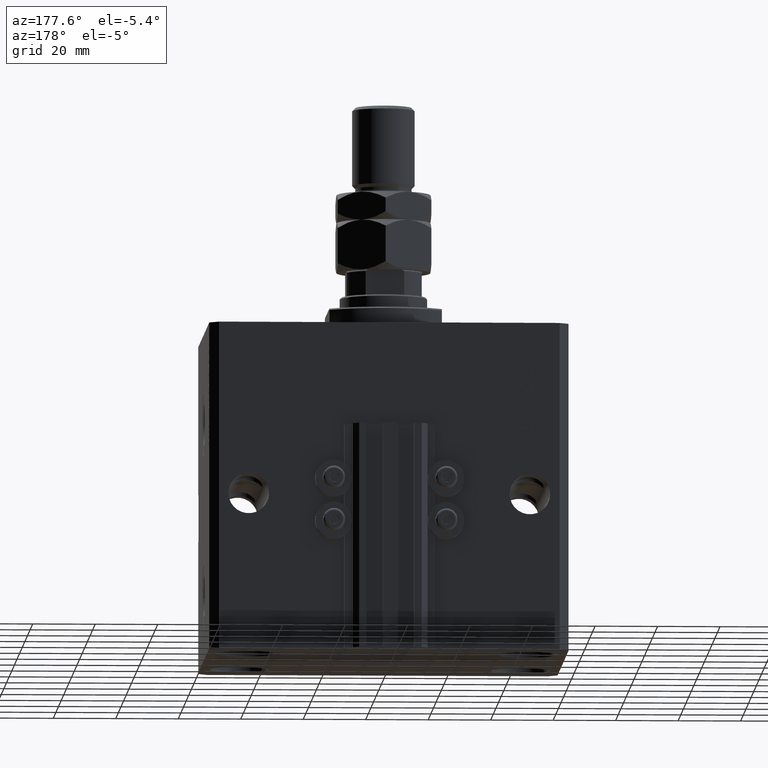
[diagram: clean part render]
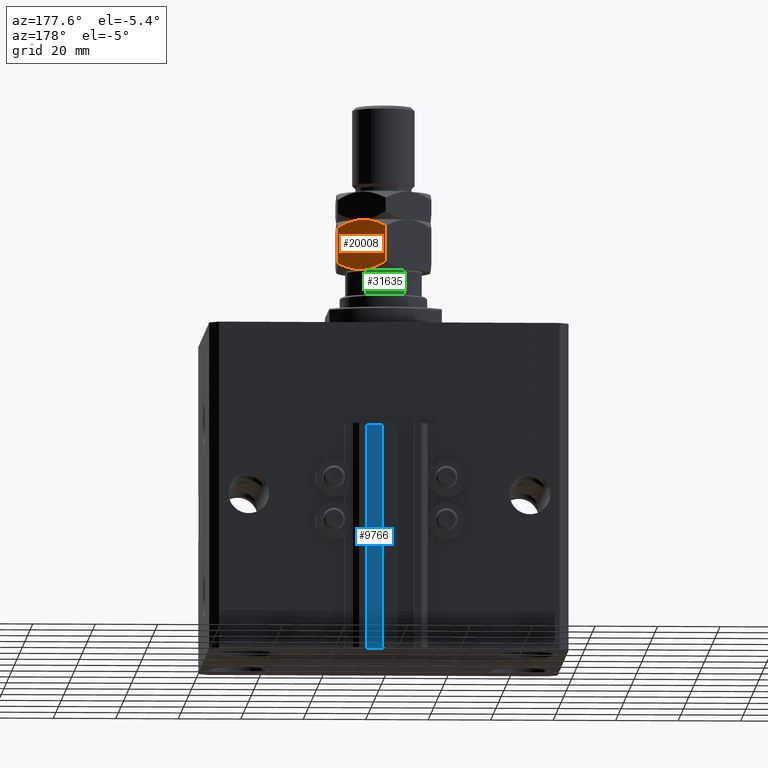
[diagram: same view with three faces highlighted in distinct colors, each labeled with its STEP entity id]
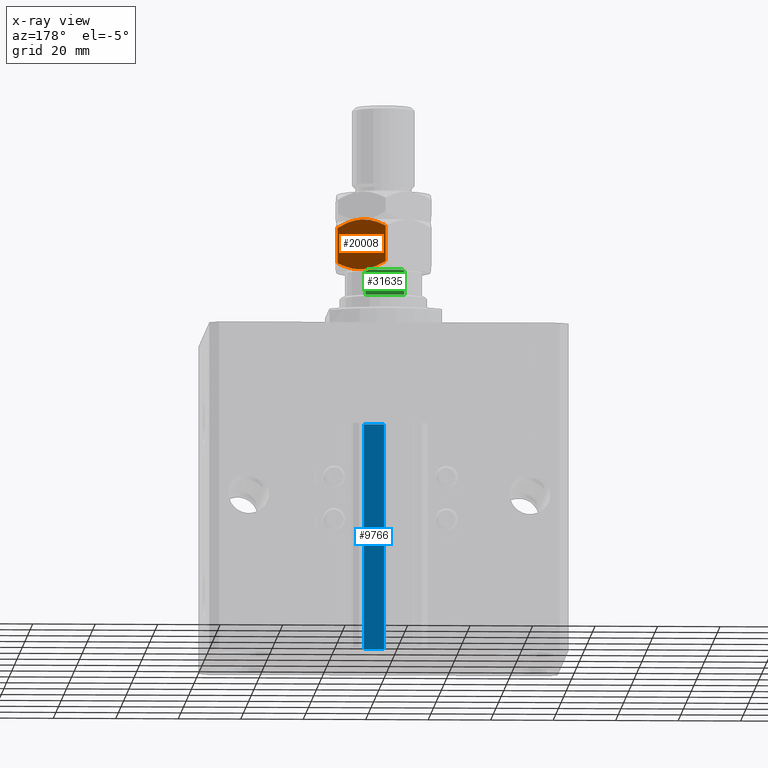
[diagram: x-ray of the same camera — body ghosted, the three highlighted faces saturated]
A machine part, auxiliary view with three faces highlighted in distinct colors.
The next image is the same camera in x-ray (body ghosted, the three faces saturated) — at least one of them is partly hidden behind the body in this view.
Their STEP definitions:

[orange] entity #20008 — the highlighted planar face has unit normal (-0.5, -0.866, 0).
#244 = CARTESIAN_POINT ( 'NONE',  ( 8.823580389329306328, 12.22621156269319798, 15.94046462602529957 ) ) ;
#936 = EDGE_CURVE ( 'NONE', #22589, #29348, #2656, .T. ) ;
#1606 = CARTESIAN_POINT ( 'NONE',  ( 8.804550678576910983, 12.23719837131869426, -5.031375706690542042E-16 ) ) ;
#2391 = B_SPLINE_CURVE_WITH_KNOTS ( 'NONE', 3,
 ( #32195, #1606, #40640, #16764, #48864, #13425 ),
 .UNSPECIFIED., .F., .F.,
 ( 4, 2, 4 ),
 ( 0.008977392552884443794, 0.01343452311421656532, 0.01789165367554868685 ),
 .UNSPECIFIED. ) ;
#2656 = B_SPLINE_CURVE_WITH_KNOTS ( 'NONE', 3,
 ( #34915, #15158, #16160, #27460, #30841, #244, #31587, #43379 ),
 .UNSPECIFIED., .F., .F.,
 ( 4, 2, 2, 4 ),
 ( 2.544309033641602453E-07, 0.004488823491893906975, 0.006733108022389177119, 0.008977392552884448998 ),
 .UNSPECIFIED. ) ;
#3581 = CARTESIAN_POINT ( 'NONE',  ( 6.195449321423087241, 13.74356374221446764, 16.00000000000000355 ) ) ;
#3684 = VECTOR ( 'NONE', #48784, 1000.000000000000000 ) ;
#3877 = EDGE_CURVE ( 'NONE', #49978, #32290, #25911, .T. ) ;
#6966 = CARTESIAN_POINT ( 'NONE',  ( 7.500000000000000000, 12.99038105676657651, 16.00000000000000000 ) ) ;
#7958 = CARTESIAN_POINT ( 'NONE',  ( 6.176419610670692784, 13.75455055083996214, 0.05953537397470201609 ) ) ;
#9722 = AXIS2_PLACEMENT_3D ( 'NONE', #22341, #21834, #45979 ) ;
#12186 = CARTESIAN_POINT ( 'NONE',  ( 15.00000000000000000, 8.660254037844389075, 2.320508075688765715 ) ) ;
#12379 = ORIENTED_EDGE ( 'NONE', *, *, #19373, .F. ) ;
#12476 = VECTOR ( 'NONE', #19054, 1000.000000000000000 ) ;
#13425 = CARTESIAN_POINT ( 'NONE',  ( 15.00000000000000000, 8.660254037844389075, 2.320508075688765715 ) ) ;
#14964 = LINE ( 'NONE', #43175, #12476 ) ;
#15158 = CARTESIAN_POINT ( 'NONE',  ( 13.82389157469336283, 9.339280553791368789, 14.35851844025821400 ) ) ;
#15696 = B_SPLINE_CURVE_WITH_KNOTS ( 'NONE', 3,
 ( #34429, #50091, #42875, #30848, #42620, #7958, #46987, #46486 ),
 .UNSPECIFIED., .F., .F.,
 ( 4, 2, 2, 4 ),
 ( 2.544309033652185071E-07, 0.004488823491893902638, 0.006733108022389172782, 0.008977392552884443794 ),
 .UNSPECIFIED. ) ;
#15909 = EDGE_CURVE ( 'NONE', #32290, #33424, #15696, .T. ) ;
#16160 = CARTESIAN_POINT ( 'NONE',  ( 12.62116548881249756, 10.03367478323606221, 14.93551393225599710 ) ) ;
#16764 = CARTESIAN_POINT ( 'NONE',  ( 12.61607045183964715, 10.03661640420386902, 1.060479031370879843 ) ) ;
#19054 = DIRECTION ( 'NONE',  ( -0.000000000000000000, -0.000000000000000000, -1.000000000000000000 ) ) ;
#19373 = EDGE_CURVE ( 'NONE', #29348, #49978, #48471, .T. ) ;
#20008 = ADVANCED_FACE ( 'NONE', ( #30588 ), #37510, .F. ) ;
#21403 = ORIENTED_EDGE ( 'NONE', *, *, #33877, .T. ) ;
#21532 = EDGE_LOOP ( 'NONE', ( #29528, #46850, #12379, #49737, #21403, #42798 ) ) ;
#21834 = DIRECTION ( 'NONE',  ( -0.4999999999999997780, -0.8660254037844388186, 0.000000000000000000 ) ) ;
#21965 = EDGE_CURVE ( 'NONE', #33424, #37366, #2391, .T. ) ;
#22341 = CARTESIAN_POINT ( 'NONE',  ( 15.00000000000000000, 8.660254037844389075, 16.00000000000000000 ) ) ;
#22589 = VERTEX_POINT ( 'NONE', #42850 ) ;
#25911 = LINE ( 'NONE', #37727, #3684 ) ;
#27460 = CARTESIAN_POINT ( 'NONE',  ( 10.75222765045651663, 11.11270654730956586, 15.55242859148697576 ) ) ;
#29348 = VERTEX_POINT ( 'NONE', #6966 ) ;
#29511 = CARTESIAN_POINT ( 'NONE',  ( 3.803331551779305683E-16, 17.32050807568877104, 13.67949192431124317 ) ) ;
#29528 = ORIENTED_EDGE ( 'NONE', *, *, #15909, .F. ) ;
#30588 = FACE_OUTER_BOUND ( 'NONE', #21532, .T. ) ;
#30841 = CARTESIAN_POINT ( 'NONE',  ( 10.11832554202262457, 11.47869010025374514, 15.71619733805371411 ) ) ;
#30848 = CARTESIAN_POINT ( 'NONE',  ( 4.247772349543482484, 14.86805556622358893, 0.4475714085130255149 ) ) ;
#31069 = CARTESIAN_POINT ( 'NONE',  ( 2.383929548160350631, 15.94414570932928576, 14.93952096862913059 ) ) ;
#31587 = CARTESIAN_POINT ( 'NONE',  ( 8.156876182308252510, 12.61113341608665728, 16.00000000000000355 ) ) ;
#32195 = CARTESIAN_POINT ( 'NONE',  ( 7.499999999999997335, 12.99038105676658184, 0.000000000000000000 ) ) ;
#32290 = VERTEX_POINT ( 'NONE', #41280 ) ;
#33424 = VERTEX_POINT ( 'NONE', #37383 ) ;
#33877 = EDGE_CURVE ( 'NONE', #22589, #37366, #14964, .T. ) ;
#34429 = CARTESIAN_POINT ( 'NONE',  ( 7.621669386706803087E-17, 17.32050807568877104, 2.320508075688761718 ) ) ;
#34915 = CARTESIAN_POINT ( 'NONE',  ( 15.00000000000000000, 8.660254037844389075, 13.67949192431123784 ) ) ;
#35410 = CARTESIAN_POINT ( 'NONE',  ( 1.174746544192161846, 16.64226784216984356, 14.35773215783022572 ) ) ;
#37366 = VERTEX_POINT ( 'NONE', #12186 ) ;
#37383 = CARTESIAN_POINT ( 'NONE',  ( 7.499999999999997335, 12.99038105676658184, 0.000000000000000000 ) ) ;
#37510 = PLANE ( 'NONE',  #9722 ) ;
#37727 = CARTESIAN_POINT ( 'NONE',  ( 0.000000000000000000, 17.32050807568877104, 16.00000000000000000 ) ) ;
#38768 = CARTESIAN_POINT ( 'NONE',  ( 4.913081180497409939, 14.48393933357810504, 15.76967007806078946 ) ) ;
#40640 = CARTESIAN_POINT ( 'NONE',  ( 10.08691881950258740, 11.49682277995505331, 0.2303299219392160591 ) ) ;
#41280 = CARTESIAN_POINT ( 'NONE',  ( 7.621669386706803087E-17, 17.32050807568877104, 2.320508075688761718 ) ) ;
#42620 = CARTESIAN_POINT ( 'NONE',  ( 4.881674457977373649, 14.50207201327941320, 0.2838026619462936107 ) ) ;
#42798 = ORIENTED_EDGE ( 'NONE', *, *, #21965, .F. ) ;
#42850 = CARTESIAN_POINT ( 'NONE',  ( 15.00000000000000000, 8.660254037844389075, 13.67949192431123784 ) ) ;
#42875 = CARTESIAN_POINT ( 'NONE',  ( 2.378834511187503331, 15.94708733029709080, 1.064486067744004671 ) ) ;
#43175 = CARTESIAN_POINT ( 'NONE',  ( 15.00000000000000000, 8.660254037844389075, 16.00000000000000000 ) ) ;
#43379 = CARTESIAN_POINT ( 'NONE',  ( 7.500000000000000000, 12.99038105676657651, 16.00000000000000000 ) ) ;
#45979 = DIRECTION ( 'NONE',  ( 0.8660254037844387076, -0.4999999999999997224, 0.000000000000000000 ) ) ;
#46486 = CARTESIAN_POINT ( 'NONE',  ( 7.499999999999997335, 12.99038105676658184, 0.000000000000000000 ) ) ;
#46850 = ORIENTED_EDGE ( 'NONE', *, *, #3877, .F. ) ;
#46987 = CARTESIAN_POINT ( 'NONE',  ( 6.843123817691747490, 13.36962869744650639, -3.557538378468061917E-16 ) ) ;
#48471 = B_SPLINE_CURVE_WITH_KNOTS ( 'NONE', 3,
 ( #50571, #3581, #38768, #31069, #35410, #50821 ),
 .UNSPECIFIED., .F., .F.,
 ( 4, 2, 4 ),
 ( 0.008977392552884448998, 0.01343452311421656706, 0.01789165367554868338 ),
 .UNSPECIFIED. ) ;
#48784 = DIRECTION ( 'NONE',  ( -0.000000000000000000, -0.000000000000000000, -1.000000000000000000 ) ) ;
#48864 = CARTESIAN_POINT ( 'NONE',  ( 13.82525345580783949, 9.338494271363313004, 1.642267842169781833 ) ) ;
#49737 = ORIENTED_EDGE ( 'NONE', *, *, #936, .F. ) ;
#49978 = VERTEX_POINT ( 'NONE', #29511 ) ;
#50091 = CARTESIAN_POINT ( 'NONE',  ( 1.176108425306640504, 16.64148155974179843, 1.641481559741787111 ) ) ;
#50571 = CARTESIAN_POINT ( 'NONE',  ( 7.500000000000000000, 12.99038105676657651, 16.00000000000000000 ) ) ;
#50821 = CARTESIAN_POINT ( 'NONE',  ( 3.803331551779305683E-16, 17.32050807568877104, 13.67949192431124317 ) ) ;

[blue] entity #9766 — the highlighted planar face has unit normal (0, 1, 0).
#1421 = LINE ( 'NONE', #44561, #36292 ) ;
#4876 = DIRECTION ( 'NONE',  ( 0.000000000000000000, 0.000000000000000000, 1.000000000000000000 ) ) ;
#6017 = CARTESIAN_POINT ( 'NONE',  ( 8.199999999999999289, 46.99999999999998579, -105.0000000000000000 ) ) ;
#6288 = VERTEX_POINT ( 'NONE', #20937 ) ;
#6527 = CARTESIAN_POINT ( 'NONE',  ( 8.199999999999999289, 46.99999999999998579, -33.00000000000000000 ) ) ;
#7197 = DIRECTION ( 'NONE',  ( -1.000000000000000000, 0.000000000000000000, 0.000000000000000000 ) ) ;
#8555 = CARTESIAN_POINT ( 'NONE',  ( 1.800000000000000933, 46.99999999999998579, -105.0000000000000000 ) ) ;
#9766 = ADVANCED_FACE ( 'NONE', ( #50117 ), #10327, .T. ) ;
#10327 = PLANE ( 'NONE',  #16995 ) ;
#12230 = DIRECTION ( 'NONE',  ( 0.000000000000000000, 0.000000000000000000, 1.000000000000000000 ) ) ;
#14618 = ORIENTED_EDGE ( 'NONE', *, *, #27883, .F. ) ;
#14909 = CARTESIAN_POINT ( 'NONE',  ( 8.199999999999999289, 46.99999999999998579, -33.00000000000000000 ) ) ;
#16995 = AXIS2_PLACEMENT_3D ( 'NONE', #41900, #26992, #25981 ) ;
#18111 = VECTOR ( 'NONE', #7197, 1000.000000000000000 ) ;
#18734 = VERTEX_POINT ( 'NONE', #30436 ) ;
#20937 = CARTESIAN_POINT ( 'NONE',  ( 8.199999999999999289, 46.99999999999998579, -105.0000000000000000 ) ) ;
#21119 = VERTEX_POINT ( 'NONE', #8555 ) ;
#24758 = LINE ( 'NONE', #6017, #28807 ) ;
#25981 = DIRECTION ( 'NONE',  ( 0.000000000000000000, 0.000000000000000000, 1.000000000000000000 ) ) ;
#26992 = DIRECTION ( 'NONE',  ( 0.000000000000000000, 1.000000000000000000, -0.000000000000000000 ) ) ;
#27883 = EDGE_CURVE ( 'NONE', #38006, #18734, #50087, .T. ) ;
#28454 = ORIENTED_EDGE ( 'NONE', *, *, #32396, .F. ) ;
#28774 = EDGE_CURVE ( 'NONE', #21119, #18734, #47502, .T. ) ;
#28807 = VECTOR ( 'NONE', #40430, 1000.000000000000000 ) ;
#30436 = CARTESIAN_POINT ( 'NONE',  ( 1.800000000000000933, 46.99999999999998579, -33.00000000000000000 ) ) ;
#32396 = EDGE_CURVE ( 'NONE', #6288, #38006, #1421, .T. ) ;
#32932 = VECTOR ( 'NONE', #4876, 1000.000000000000000 ) ;
#36292 = VECTOR ( 'NONE', #12230, 1000.000000000000000 ) ;
#38006 = VERTEX_POINT ( 'NONE', #6527 ) ;
#38695 = ORIENTED_EDGE ( 'NONE', *, *, #50562, .T. ) ;
#39242 = ORIENTED_EDGE ( 'NONE', *, *, #28774, .T. ) ;
#40430 = DIRECTION ( 'NONE',  ( -1.000000000000000000, 0.000000000000000000, 0.000000000000000000 ) ) ;
#41900 = CARTESIAN_POINT ( 'NONE',  ( 8.199999999999999289, 46.99999999999998579, -105.0000000000000000 ) ) ;
#44561 = CARTESIAN_POINT ( 'NONE',  ( 8.199999999999999289, 46.99999999999998579, -105.0000000000000000 ) ) ;
#47502 = LINE ( 'NONE', #47762, #32932 ) ;
#47762 = CARTESIAN_POINT ( 'NONE',  ( 1.800000000000000933, 46.99999999999998579, -105.0000000000000000 ) ) ;
#49941 = EDGE_LOOP ( 'NONE', ( #14618, #28454, #38695, #39242 ) ) ;
#50087 = LINE ( 'NONE', #14909, #18111 ) ;
#50117 = FACE_OUTER_BOUND ( 'NONE', #49941, .T. ) ;
#50562 = EDGE_CURVE ( 'NONE', #6288, #21119, #24758, .T. ) ;

[green] entity #31635 — the highlighted planar face has unit normal (0, -1, 0).
#395 = CARTESIAN_POINT ( 'NONE',  ( 5.230809753656818550, 11.99999999999999289, 107.0999999999999801 ) ) ;
#912 = FACE_OUTER_BOUND ( 'NONE', #4444, .T. ) ;
#1186 = CARTESIAN_POINT ( 'NONE',  ( -5.230795946637842420, 11.99999999999999645, 107.0999999999999943 ) ) ;
#1433 = CARTESIAN_POINT ( 'NONE',  ( -5.900889097622411761, 12.00000000000000178, 106.9429613869932894 ) ) ;
#2457 = CARTESIAN_POINT ( 'NONE',  ( -6.184658438426490434, 12.00000000000000000, -0.001000000000001000089 ) ) ;
#3137 = VERTEX_POINT ( 'NONE', #20532 ) ;
#3735 = VERTEX_POINT ( 'NONE', #38278 ) ;
#3980 = CARTESIAN_POINT ( 'NONE',  ( 5.793822051191360956, 11.99999999999999822, 106.9841735219943359 ) ) ;
#4190 = EDGE_CURVE ( 'NONE', #24527, #6536, #16755, .T. ) ;
#4242 = CARTESIAN_POINT ( 'NONE',  ( 6.045866546018598520, 12.00000000000000178, 106.8461068616299485 ) ) ;
#4444 = EDGE_LOOP ( 'NONE', ( #33814, #46313, #7386, #29429, #43916, #9517 ) ) ;
#6536 = VERTEX_POINT ( 'NONE', #39898 ) ;
#6894 = DIRECTION ( 'NONE',  ( -0.000000000000000000, -0.000000000000000000, 1.000000000000000000 ) ) ;
#7154 = CARTESIAN_POINT ( 'NONE',  ( 6.160856115322540738, 12.00000000000000355, 106.7149782197479055 ) ) ;
#7386 = ORIENTED_EDGE ( 'NONE', *, *, #47741, .F. ) ;
#8191 = CARTESIAN_POINT ( 'NONE',  ( -6.184658438426491323, 12.00000000000000000, 106.6589344020393924 ) ) ;
#9317 = VERTEX_POINT ( 'NONE', #18232 ) ;
#9392 = CARTESIAN_POINT ( 'NONE',  ( -5.458892612163326774, 11.99999999999999822, 107.0796099716497736 ) ) ;
#9499 = B_SPLINE_CURVE_WITH_KNOTS ( 'NONE', 3,
 ( #12046, #8191, #12994, #23847, #36363, #1433, #44573, #9392, #1186, #33029 ),
 .UNSPECIFIED., .F., .F.,
 ( 4, 2, 2, 2, 4 ),
 ( 0.000000000000000000, 0.0001740189231935435705, 0.0003480378463870871411, 0.0006960756927741721138, 0.001392151385548330567 ),
 .UNSPECIFIED. ) ;
#9517 = ORIENTED_EDGE ( 'NONE', *, *, #33234, .T. ) ;
#12046 = CARTESIAN_POINT ( 'NONE',  ( -6.184658438426490434, 12.00000000000000000, 106.5999999999999943 ) ) ;
#12220 = PLANE ( 'NONE',  #40401 ) ;
#12994 = CARTESIAN_POINT ( 'NONE',  ( -6.161088279078732910, 12.00000000000000000, 106.7146234191510104 ) ) ;
#13227 = DIRECTION ( 'NONE',  ( 7.228014483236695816E-17, -1.000000000000000000, 0.000000000000000000 ) ) ;
#13731 = EDGE_CURVE ( 'NONE', #20444, #3137, #40308, .T. ) ;
#15127 = LINE ( 'NONE', #42838, #38276 ) ;
#15351 = LINE ( 'NONE', #42068, #15572 ) ;
#15572 = VECTOR ( 'NONE', #6894, 1000.000000000000000 ) ;
#15639 = VECTOR ( 'NONE', #30720, 1000.000000000000000 ) ;
#15803 = CARTESIAN_POINT ( 'NONE',  ( 6.184658438426490434, 11.99999999999999822, 106.5999999999999943 ) ) ;
#16755 = LINE ( 'NONE', #21367, #28418 ) ;
#17830 = CARTESIAN_POINT ( 'NONE',  ( 5.000000000000002665, 12.00000000000000000, 107.0999999999999943 ) ) ;
#18232 = CARTESIAN_POINT ( 'NONE',  ( -6.184658438426490434, 12.00000000000000000, 106.5999999999999943 ) ) ;
#20444 = VERTEX_POINT ( 'NONE', #17830 ) ;
#20532 = CARTESIAN_POINT ( 'NONE',  ( 6.184658438426490434, 11.99999999999999822, 106.5999999999999943 ) ) ;
#21367 = CARTESIAN_POINT ( 'NONE',  ( -11.99999999999999822, 11.99999999999999822, 99.09999999999999432 ) ) ;
#22803 = CARTESIAN_POINT ( 'NONE',  ( 5.459934723612541951, 12.00000000000000000, 107.0794964115812036 ) ) ;
#23847 = CARTESIAN_POINT ( 'NONE',  ( -6.091003570118825650, 11.99999999999999822, 106.8080862465981227 ) ) ;
#24527 = VERTEX_POINT ( 'NONE', #44595 ) ;
#25827 = LINE ( 'NONE', #2457, #15639 ) ;
#28418 = VECTOR ( 'NONE', #32938, 1000.000000000000000 ) ;
#29429 = ORIENTED_EDGE ( 'NONE', *, *, #4190, .T. ) ;
#30720 = DIRECTION ( 'NONE',  ( -0.000000000000000000, -0.000000000000000000, 1.000000000000000000 ) ) ;
#30808 = DIRECTION ( 'NONE',  ( -1.000000000000000000, -7.228014483236695816E-17, -0.000000000000000000 ) ) ;
#31635 = ADVANCED_FACE ( 'NONE', ( #912 ), #12220, .F. ) ;
#31986 = CARTESIAN_POINT ( 'NONE',  ( 6.184658438426495763, 12.00000000000000355, 106.6589821493407584 ) ) ;
#32488 = CARTESIAN_POINT ( 'NONE',  ( 5.903192932991098374, 12.00000000000000000, 106.9415152347680333 ) ) ;
#32938 = DIRECTION ( 'NONE',  ( -1.000000000000000000, -7.228014483236695816E-17, -0.000000000000000000 ) ) ;
#33029 = CARTESIAN_POINT ( 'NONE',  ( -5.000000000000001776, 11.99999999999999822, 107.0999999999999943 ) ) ;
#33234 = EDGE_CURVE ( 'NONE', #9317, #3735, #9499, .T. ) ;
#33814 = ORIENTED_EDGE ( 'NONE', *, *, #44705, .F. ) ;
#36363 = CARTESIAN_POINT ( 'NONE',  ( -6.046414714222231979, 11.99999999999999822, 106.8457872300293019 ) ) ;
#38276 = VECTOR ( 'NONE', #30808, 1000.000000000000000 ) ;
#38278 = CARTESIAN_POINT ( 'NONE',  ( -5.000000000000001776, 11.99999999999999822, 107.0999999999999943 ) ) ;
#39697 = CARTESIAN_POINT ( 'NONE',  ( -11.99999999999999822, 11.99999999999999822, 107.0999999999999943 ) ) ;
#39898 = CARTESIAN_POINT ( 'NONE',  ( -6.184658438426488658, 12.00000000000000000, 99.10000000000006537 ) ) ;
#40308 = B_SPLINE_CURVE_WITH_KNOTS ( 'NONE', 3,
 ( #47645, #395, #22803, #3980, #32488, #4242, #47126, #7154, #31986, #15803 ),
 .UNSPECIFIED., .F., .F.,
 ( 4, 2, 2, 2, 4 ),
 ( 1.734723475976807094E-18, 0.0006877128613558521411, 0.001031569292033771706, 0.001203497507372732573, 0.001375425722711693440 ),
 .UNSPECIFIED. ) ;
#40401 = AXIS2_PLACEMENT_3D ( 'NONE', #39697, #13227, #47907 ) ;
#42068 = CARTESIAN_POINT ( 'NONE',  ( 6.184658438426490434, 11.99999999999999822, -0.001000000000001000089 ) ) ;
#42838 = CARTESIAN_POINT ( 'NONE',  ( -11.99999999999999822, 11.99999999999999822, 107.0999999999999943 ) ) ;
#43916 = ORIENTED_EDGE ( 'NONE', *, *, #49312, .T. ) ;
#44573 = CARTESIAN_POINT ( 'NONE',  ( -5.792513940493508429, 11.99999999999999822, 106.9846382036009373 ) ) ;
#44595 = CARTESIAN_POINT ( 'NONE',  ( 6.184658438426492211, 12.00000000000000178, 99.10000000000006537 ) ) ;
#44705 = EDGE_CURVE ( 'NONE', #20444, #3735, #15127, .T. ) ;
#46313 = ORIENTED_EDGE ( 'NONE', *, *, #13731, .T. ) ;
#47126 = CARTESIAN_POINT ( 'NONE',  ( 6.091027642353962435, 12.00000000000000355, 106.8080088155617347 ) ) ;
#47645 = CARTESIAN_POINT ( 'NONE',  ( 5.000000000000002665, 12.00000000000000000, 107.0999999999999943 ) ) ;
#47741 = EDGE_CURVE ( 'NONE', #24527, #3137, #15351, .T. ) ;
#47907 = DIRECTION ( 'NONE',  ( 1.000000000000000000, 7.228014483236695816E-17, 0.000000000000000000 ) ) ;
#49312 = EDGE_CURVE ( 'NONE', #6536, #9317, #25827, .T. ) ;